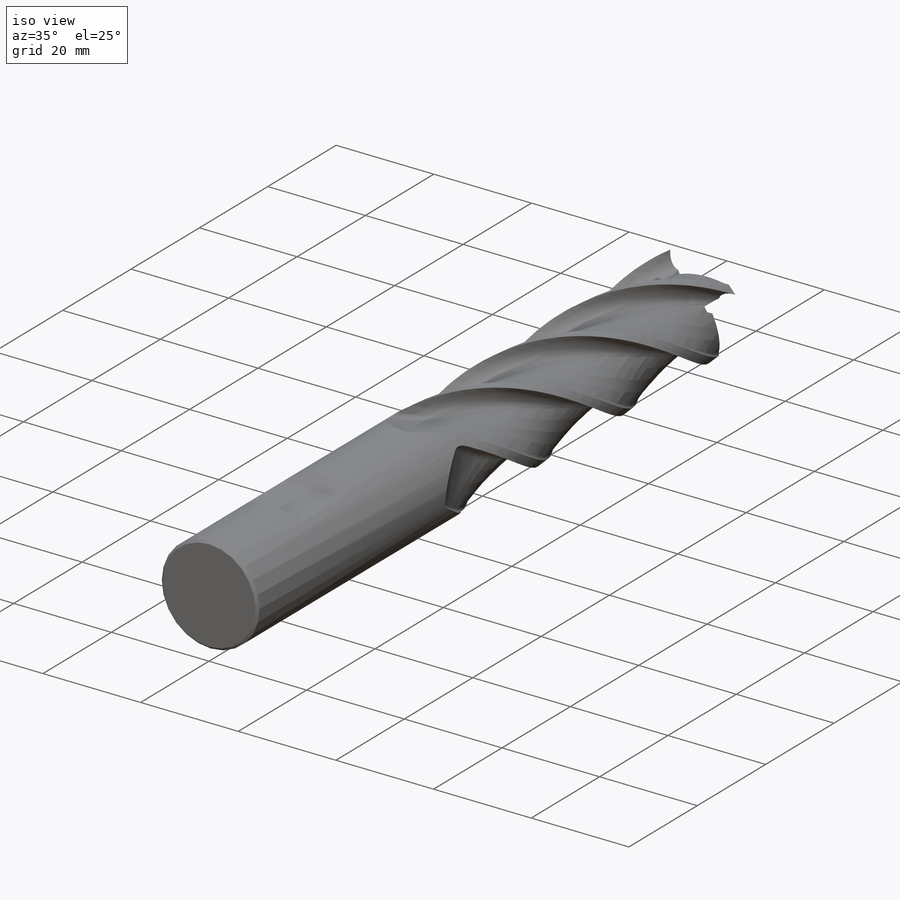
[diagram: iso view]
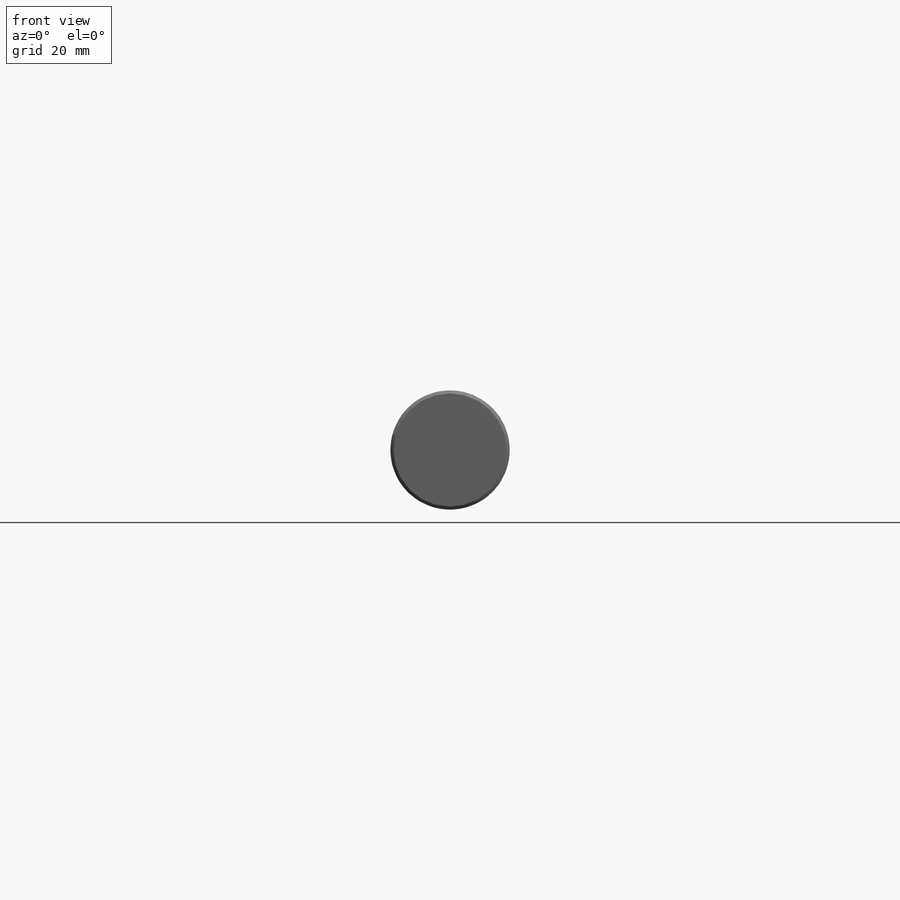
[diagram: front view]
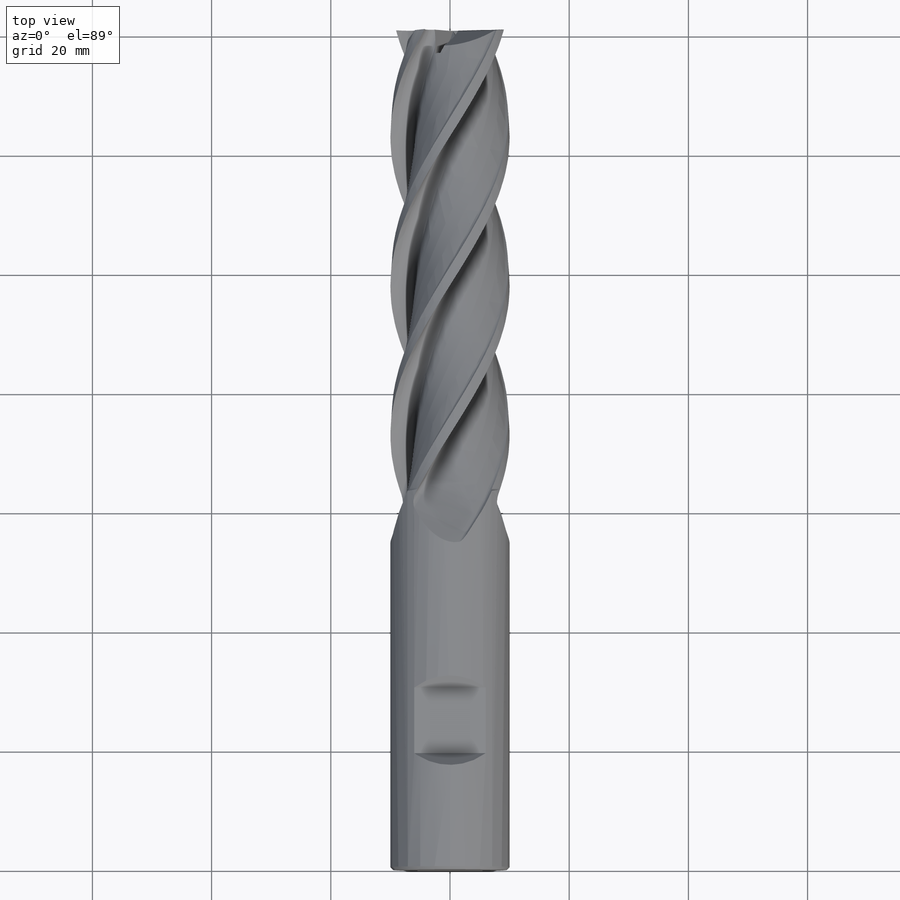
[diagram: top view]
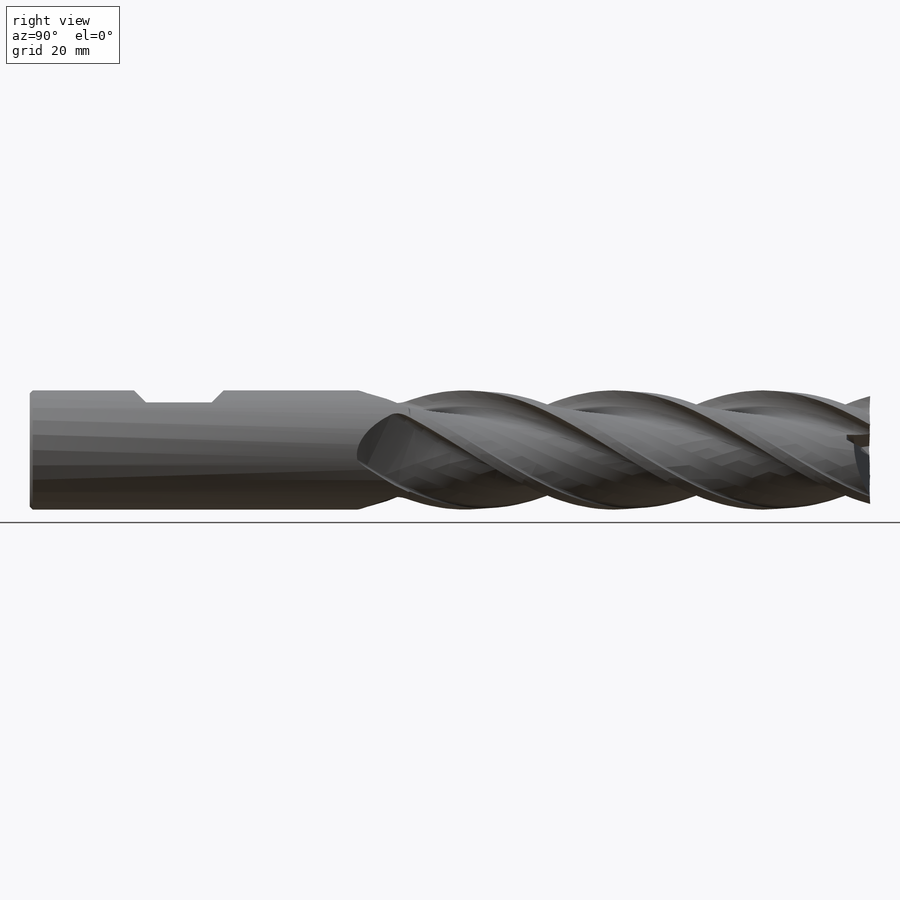
[diagram: right view]
SOLIDWORKS PART (.sldprt)
format: sldprt  version: not decoded by parser v0  size: 2,293,760 bytes
history: native  units: mm
features: sketch x15, plane x12, pattern_circular x6, cut_extrude x4, cut_revolve x3, sweep x2, material x1, revolve x1, helix x1, fillet x1 (+8 scaffold rows collapsed)
feature tree (54):
  scaffold x8  (default folders/planes/origin — collapsed)
  material  "Nichtrostender Chromstahl"
  plane  "Ebene vorne"
  plane  "Ebene oben"
  plane  "Ebene rechts"
  sketch  "Skizze1"  dims[c1.D1=20.0mm c1.D2=140.5mm c1.D4=120.0mm c2.D4=90.0deg]
  revolve  "Rotation1"  Angle=360deg
  plane  "Ebene2"  Offset=170.5mm
  sketch  "Skizze2"
  helix  "Spirale/Helix1"  Pitch=100mm
  plane  "Ebene1"
  sketch  "Skizze3"  dims[c1.D3=3.0mm c1.D4=1.0mm c1.D6=1.0mm c1.D5=5.0mm c1.D8=10.0mm c1.D7=0.5mm c1.D1=11.0mm c1.D2=1.0mm c2.D3=45.0mm c2.D4=40.0mm c2.D5=15.0mm c3.D5=76.0deg c3.D4=30.0mm c3.D7=4.0mm c3.D8=40.0mm c4.D8=99.0deg c4.D9=40.0mm c5.D9=105.0deg c5.D3=3.0mm c5.D5=32.5mm c5.D7=10.0mm c5.Rotation2=0.0 c5.D1=360.0deg]
  sweep  "Schnitt-Austragung2"
  pattern_circular  "Kreismuster1"  Count=4 Angle=360deg
  sketch  "Skizze11"  dims[c1.D1=10.0mm c1.D2=20.0mm c1.D11=10.0mm c2.D1=0.2mm c2.D4=~0.590189mm c2.D5=~1.082704mm c2.D6=~4.235709mm c2.D7=~4.499309mm c2.D8=~5.80456mm c2.D9=~6.516519mm c2.D10=~7.840403mm c2.D11=~8.222243mm c2.D12=~9.058629mm c2.D13=~9.481043mm c2.D14=~0.590189mm c2.D15=~1.082704mm c2.D16=~4.235709mm c2.D17=~4.499309mm c2.D18=~5.80456mm c2.D19=~6.516519mm c2.D20=~7.840403mm c2.D21=~8.222243mm c2.D22=~9.058629mm c2.D23=~9.481043mm c3.D4=~0.590189mm c3.D5=~4.235709mm c3.D6=~4.499309mm c3.D7=~5.80456mm c3.D8=~6.516519mm c3.D9=~7.840403mm c3.D10=~8.222243mm c3.D12=~0.497914mm c3.D13=~2.377754mm c3.D14=~0.80789mm c3.D2=~0.572475mm c3.D3=~0.954314mm c4.D4=~1.790701mm c4.D5=~2.213115mm c4.D6=~0.75141mm c4.D7=~1.463368mm c4.D8=~2.76862mm c4.D9=~3.032219mm c4.D10=~6.185225mm c4.D11=~6.677739mm c4.D12=~7.267928mm c4.D13=~7.858117mm c4.D14=~8.350632mm c4.D15=~11.503638mm c4.D16=~11.767237mm c4.D17=~13.072488mm c4.D18=~13.784447mm c4.D19=~15.108331mm c4.D20=~15.490171mm c4.D21=~16.326558mm c4.D22=~16.748972mm c4.D2=~0.572475mm c4.D3=~0.954314mm c5.D4=~1.790701mm c5.D5=~2.213115mm c5.D6=~0.75141mm c5.D7=~1.463368mm c5.D8=~2.76862mm c5.D9=~6.185225mm c5.D10=~7.858117mm c5.D11=~2.542106mm c5.D13=~3.254064mm c5.D14=~4.559316mm c5.D15=~4.822915mm c5.D16=~7.97592mm c5.D17=~9.058624mm c5.D18=~9.648813mm c5.D19=~10.141328mm c5.D20=~13.294333mm c5.D21=~13.557933mm c5.D22=~14.863184mm c5.D23=~15.575143mm c5.D24=~16.899027mm c5.D25=~17.280867mm c5.D26=~18.117254mm c5.D27=~18.539667mm c6.D11=~2.542106mm c6.D13=~7.97592mm c6.D14=~9.648813mm]
  sketch  "3D-Skizze1"
  sketch  "Skizze8"  dims[c1.D1=~8.938613mm c2.D1=1.0deg c2.D2=10.0mm]
  sketch  "Skizze12"  dims[D1=77.5mm]
  sweep  "Schnitt-Austragung6"
  sketch  "Skizze13"  dims[c1.D1=~9.099497mm c2.D1=135.0deg c2.D2=18.0mm c2.D3=11.0mm c2.D4=10.0mm c2.D5=19.5mm]
  cut_extrude  "Schnitt-Linear austragen3"  Depth=20mm
  cut_revolve  "Schnitt-Rotation1"  Angle=360deg
  plane  "Ebene3"
  plane  "Ebene4"
  plane  "Ebene5"  Offset=5.833357mm
  sketch  "Skizze14"  dims[c1.D1=1.0mm c1.D2=0.1mm c1.D3=4.0mm c1.D4=~9.423158mm c2.D4=30.0deg c2.D5=8.0mm c2.D6=4.0mm]
  cut_revolve  "Schnitt-Rotation2"  Angle=360deg
  pattern_circular  "Kreismuster9"  Count=2 Angle=360deg
  plane  "Ebene6"  Offset=6.933504mm
  sketch  "Skizze15"  dims[c1.D1=1.0mm c1.D2=8.0mm c1.D3=8.0mm c2.D3=30.0deg c2.D4=4.0mm c2.D5=0.0mm c2.D6=4.0mm]
  cut_revolve  "Schnitt-Rotation3"  Angle=360deg
  pattern_circular  "Kreismuster10"  Count=2 Angle=360deg
  sketch  "Skizze19"  dims[D1=6.0mm]
  plane  "Ebene8"
  sketch  "Skizze20"  dims[c1.D1=~62.76034mm c2.D1=~177.988961deg c3.D1=10.0mm c3.D2=~13.800826mm c4.D2=70.0deg c4.D1=10.01mm c4.D3=4.0mm c4.D4=~13.811252mm c5.D4=~88.996485deg c6.D4=12.0mm c6.D5=6.5mm]
  cut_extrude  "Schnitt-Linear austragen7"  Depth=20mm
  pattern_circular  "Kreismuster12"  Count=2 Angle=360deg
  sketch  "Skizze21"
  plane  "Ebene9"
  sketch  "Skizze22"  dims[c1.D1=~4.143622mm c2.D1=90.0deg c2.D2=10.75mm c2.D3=10.0mm c2.D4=4.0mm]
  cut_extrude  "Schnitt-Linear austragen8"  Depth=20mm
  pattern_circular  "Kreismuster13"  Count=2 Angle=360deg
  plane  "Ebene10"
  sketch  "Skizze23"  dims[D1=11.0mm D2=10.0mm D3=4.0mm]
  cut_extrude  "Schnitt-Linear austragen9"  Depth=20mm
  pattern_circular  "Kreismuster14"  Count=4 Angle=360deg
  fillet  "Verrundung1"  Radius=0.5mm
decode coverage: 28 of 33 modeling features carry decoded parameters
note: ~ marks probable driven/reference dimensions
note: suppression state not decoded; provenance and decode notes live in map.json
